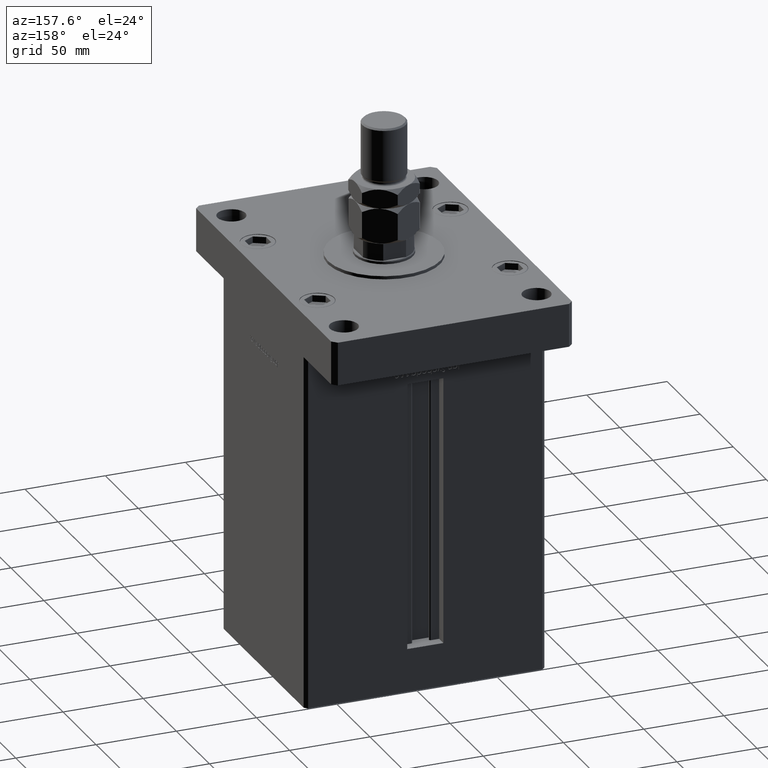
[diagram: clean part render]
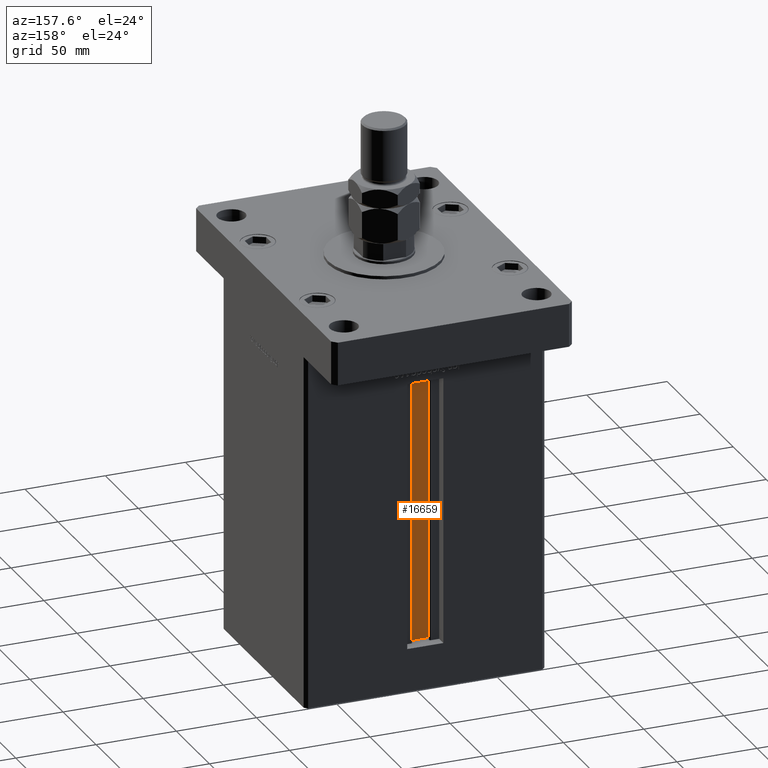
[diagram: same view with one face highlighted and labeled with its STEP entity id]
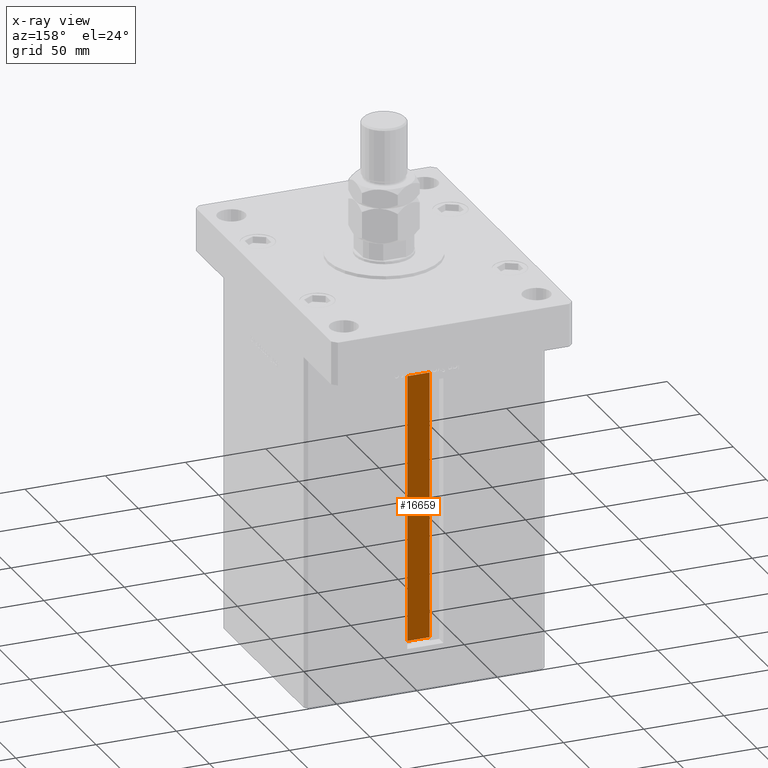
[diagram: x-ray of the same camera — body ghosted, the highlighted face saturated]
A machine part, auxiliary view. The second image highlights one B-rep face of the part: STEP entity #16659.
The next image is the same camera in x-ray: the body ghosted, the highlighted face saturated — about 0% of this face is hidden behind the body in this view.
In plain terms, the highlighted planar face has unit normal (0, -1, 0).
Its self-contained STEP definition (entity closure, byte-faithful):
#319 = ORIENTED_EDGE ( 'NONE', *, *, #37880, .T. ) ;
#552 = ORIENTED_EDGE ( 'NONE', *, *, #24234, .F. ) ;
#2400 = LINE ( 'NONE', #53959, #22666 ) ;
#3247 = LINE ( 'NONE', #7679, #18581 ) ;
#5859 = VECTOR ( 'NONE', #50933, 1000.000000000000000 ) ;
#5864 = CARTESIAN_POINT ( 'NONE',  ( 6.876153656360466826, 51.99999999999986500, 0.000000000000000000 ) ) ;
#6133 = DIRECTION ( 'NONE',  ( 0.000000000000000000, -1.000000000000000000, -0.000000000000000000 ) ) ;
#6957 = CARTESIAN_POINT ( 'NONE',  ( 6.876153656360466826, 51.99999999999986500, 166.9999999999999432 ) ) ;
#7679 = CARTESIAN_POINT ( 'NONE',  ( -6.876153656360466826, 51.99999999999986500, 0.000000000000000000 ) ) ;
#8444 = VERTEX_POINT ( 'NONE', #49201 ) ;
#9524 = VERTEX_POINT ( 'NONE', #43417 ) ;
#14171 = FACE_OUTER_BOUND ( 'NONE', #53746, .T. ) ;
#15521 = AXIS2_PLACEMENT_3D ( 'NONE', #5864, #6133, #44427 ) ;
#16659 = ADVANCED_FACE ( 'NONE', ( #14171 ), #27460, .F. ) ;
#17070 = CARTESIAN_POINT ( 'NONE',  ( 0.000000000000000000, 51.99999999999986500, 167.0000000000000000 ) ) ;
#18581 = VECTOR ( 'NONE', #24846, 1000.000000000000000 ) ;
#18934 = LINE ( 'NONE', #47814, #53945 ) ;
#22666 = VECTOR ( 'NONE', #32324, 1000.000000000000000 ) ;
#23366 = DIRECTION ( 'NONE',  ( -0.000000000000000000, -0.000000000000000000, 1.000000000000000000 ) ) ;
#24234 = EDGE_CURVE ( 'NONE', #26833, #8444, #42337, .T. ) ;
#24692 = ORIENTED_EDGE ( 'NONE', *, *, #28200, .F. ) ;
#24846 = DIRECTION ( 'NONE',  ( -0.000000000000000000, -0.000000000000000000, 1.000000000000000000 ) ) ;
#26833 = VERTEX_POINT ( 'NONE', #6957 ) ;
#27460 = PLANE ( 'NONE',  #15521 ) ;
#28200 = EDGE_CURVE ( 'NONE', #9524, #52083, #2400, .T. ) ;
#32324 = DIRECTION ( 'NONE',  ( 1.000000000000000000, -0.000000000000000000, -0.000000000000000000 ) ) ;
#34079 = ORIENTED_EDGE ( 'NONE', *, *, #37100, .F. ) ;
#37100 = EDGE_CURVE ( 'NONE', #52083, #26833, #18934, .T. ) ;
#37880 = EDGE_CURVE ( 'NONE', #9524, #8444, #3247, .T. ) ;
#38344 = CARTESIAN_POINT ( 'NONE',  ( 6.876153656360466826, 51.99999999999986500, 0.000000000000000000 ) ) ;
#42337 = LINE ( 'NONE', #17070, #5859 ) ;
#43417 = CARTESIAN_POINT ( 'NONE',  ( -6.876153656360466826, 51.99999999999986500, 0.000000000000000000 ) ) ;
#44427 = DIRECTION ( 'NONE',  ( 0.000000000000000000, 0.000000000000000000, -1.000000000000000000 ) ) ;
#47814 = CARTESIAN_POINT ( 'NONE',  ( 6.876153656360466826, 51.99999999999986500, 0.000000000000000000 ) ) ;
#49201 = CARTESIAN_POINT ( 'NONE',  ( -6.876153656360466826, 51.99999999999986500, 166.9999999999999432 ) ) ;
#50933 = DIRECTION ( 'NONE',  ( -1.000000000000000000, 0.000000000000000000, 0.000000000000000000 ) ) ;
#52083 = VERTEX_POINT ( 'NONE', #38344 ) ;
#53746 = EDGE_LOOP ( 'NONE', ( #34079, #24692, #319, #552 ) ) ;
#53945 = VECTOR ( 'NONE', #23366, 1000.000000000000000 ) ;
#53959 = CARTESIAN_POINT ( 'NONE',  ( 6.876153656360466826, 51.99999999999986500, 0.000000000000000000 ) ) ;